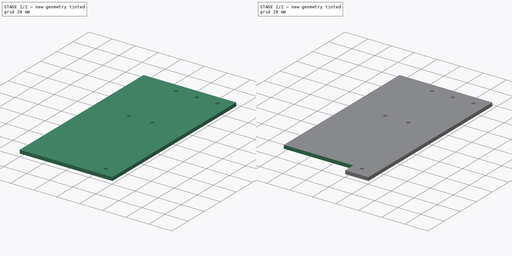
[diagram: build sequence overview — one tinted view per stage of 2, left to right]
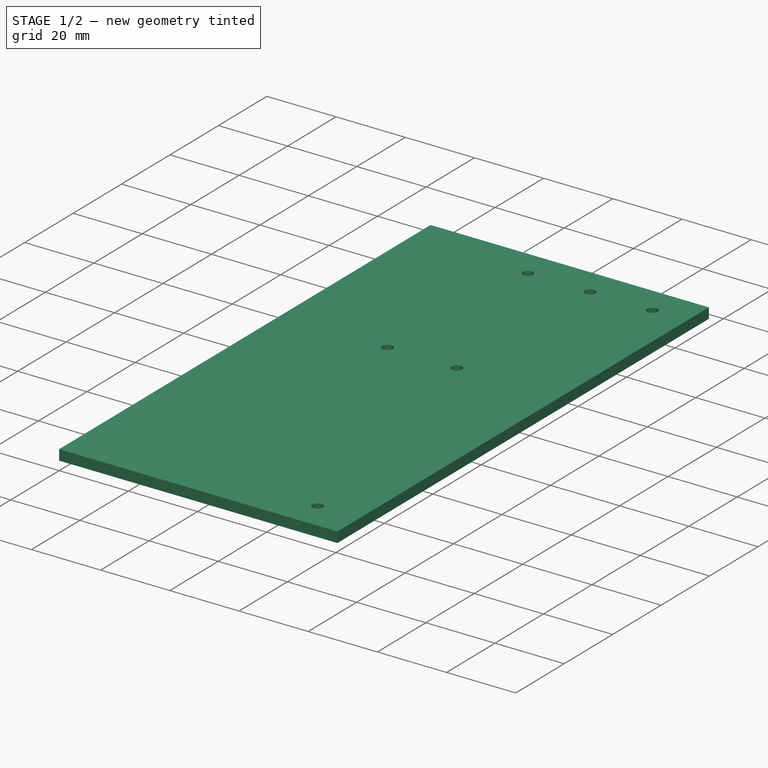
[diagram: stage 1 of 2 — iso view after this stage's code; geometry added in this stage tinted green]
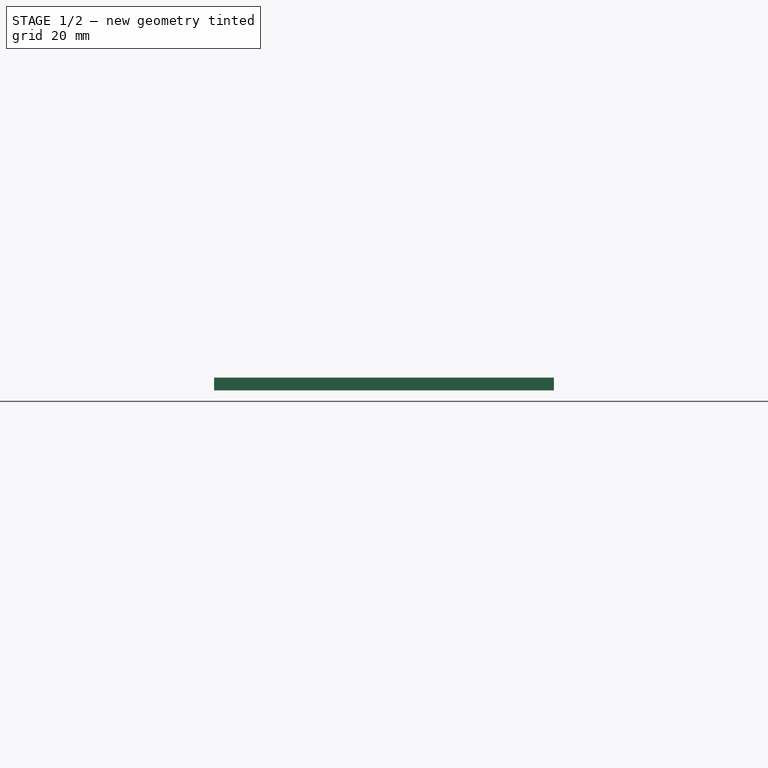
[diagram: stage 1 of 2 — front view after this stage's code; geometry added in this stage tinted green]
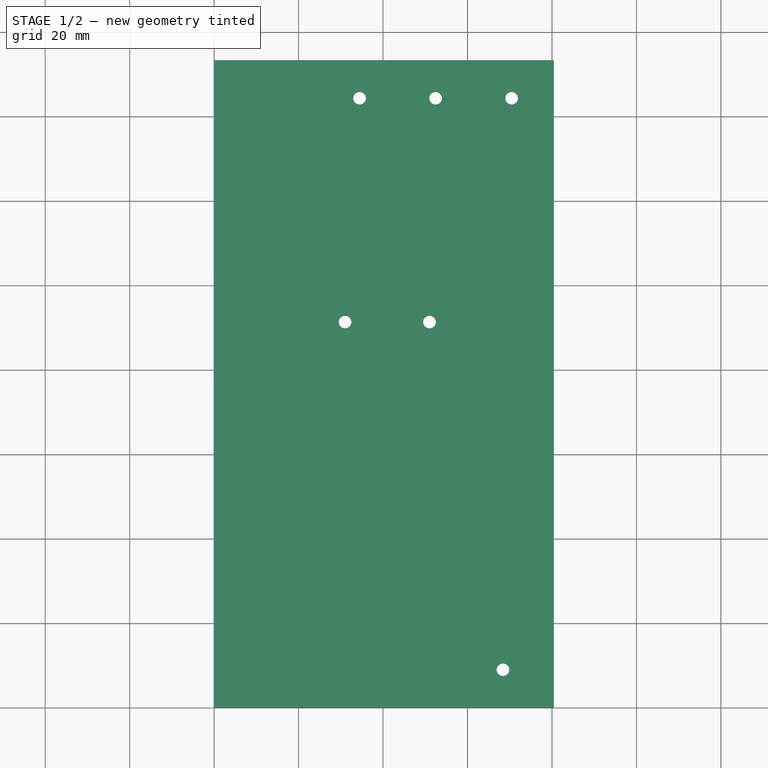
[diagram: stage 1 of 2 — top view after this stage's code; geometry added in this stage tinted green]
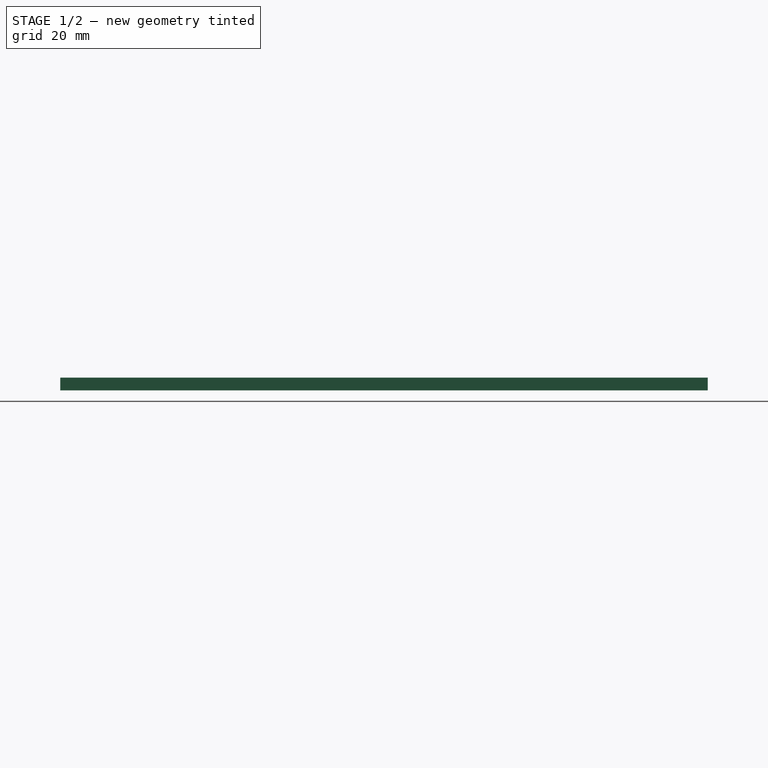
[diagram: stage 1 of 2 — right view after this stage's code; geometry added in this stage tinted green]
FCSTD DOCUMENT  (FreeCAD 0.16R6707 (Git))
Label: cotés
License: All rights reserved
LicenseURL: http://en.wikipedia.org/wiki/All_rights_reserved
objects: Sketcher::SketchObject×2, PartDesign::Pad×1, PartDesign::Pocket×1, Drawing::FeatureViewPart×1, Drawing::FeaturePage×1
note: 6 computed .brp shape members not serialized (recipe doc carries the construction recipe); baked Part::Feature solids carry a one-line shape summary decoded from their .brp

FEATURE [Sketcher::SketchObject] Sketch
  sketch-geometry (10):
    g0: LineSegment StartX=0 StartY=0 StartZ=0 EndX=80.45 EndY=0 EndZ=0
    g1: LineSegment StartX=80.45 StartY=0 StartZ=0 EndX=80.45 EndY=153.35 EndZ=0
    g2: LineSegment StartX=80.45 StartY=153.35 StartZ=0 EndX=0 EndY=153.35 EndZ=0
    g3: LineSegment StartX=0 StartY=153.35 StartZ=0 EndX=0 EndY=0 EndZ=0
    g4: Circle CenterX=68.4 CenterY=9 CenterZ=0 NormalX=0 NormalY=0 NormalZ=1 Radius=1.5
    g5: Circle CenterX=70.45 CenterY=144.35 CenterZ=0 NormalX=0 NormalY=0 NormalZ=1 Radius=1.5
    g6: Circle CenterX=52.45 CenterY=144.35 CenterZ=0 NormalX=0 NormalY=0 NormalZ=1 Radius=1.5
    g7: Circle CenterX=34.45 CenterY=144.35 CenterZ=0 NormalX=0 NormalY=0 NormalZ=1 Radius=1.5
    g8: Circle CenterX=31 CenterY=91.35 CenterZ=0 NormalX=0 NormalY=0 NormalZ=1 Radius=1.5
    g9: Circle CenterX=51 CenterY=91.35 CenterZ=0 NormalX=0 NormalY=0 NormalZ=1 Radius=1.5
  constraints (29):
    c: Coincident(g0,g1)
    c: Coincident(g1,g2)
    c: Coincident(g2,g3)
    c: Coincident(g3,g0)
    c: Horizontal(g0)
    c: Horizontal(g2)
    c: Vertical(g1)
    c: Vertical(g3)
    c: Coincident(g0,g-1)
    c: Distance(g3) = 153.35
    c: Distance(g0) = 80.45
    c: DistanceY(g4) = 9
    c: Radius(g4) = 1.5
    c: DistanceX(g4,g0) = 12.05
    c: DistanceY(g6,g7) = 0
    c: DistanceY(g5,g6) = 0
    c: DistanceX(g7,g6) = 18
    c: DistanceX(g6,g5) = 18
    c: DistanceX(g5,g1) = 10
    c: DistanceY(g5,g1) = 9
    c: Radius(g5) = 1.5
    c: Equal(g5,g6)
    c: Equal(g5,g7)
    c: DistanceY(g8,g9) = 0
    c: DistanceX(g8,g9) = 20
    c: Radius(g8) = 1.5
    c: Equal(g8,g9)
    c: DistanceY(g8) = 91.35
    c: DistanceX(g8) = 31
FEATURE [PartDesign::Pad] Pad
  Length = 3
  Length2 = 100
  Sketch = -> Sketch
  Type = 0
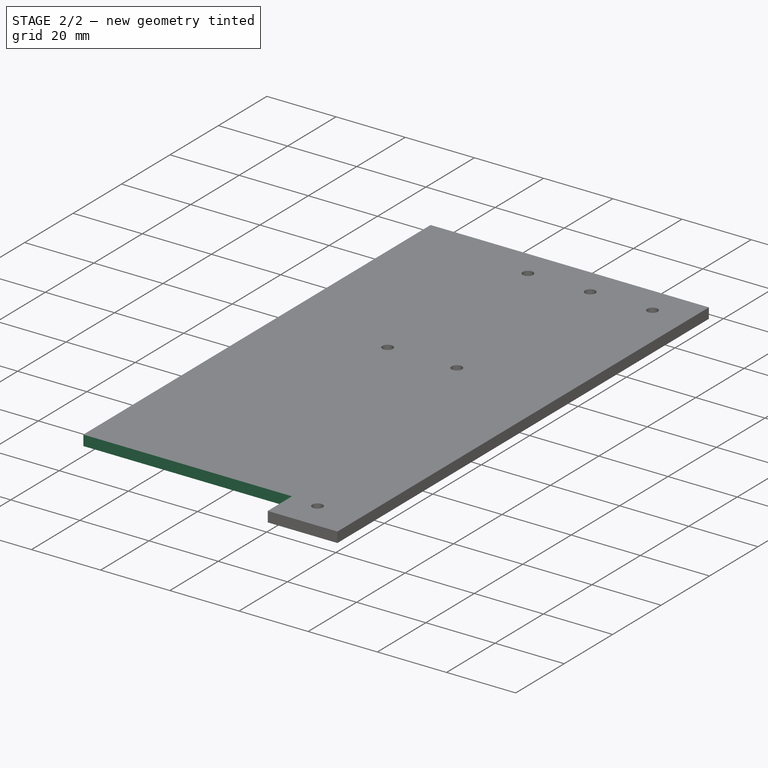
[diagram: stage 2 of 2 — iso view after this stage's code; geometry added in this stage tinted green]
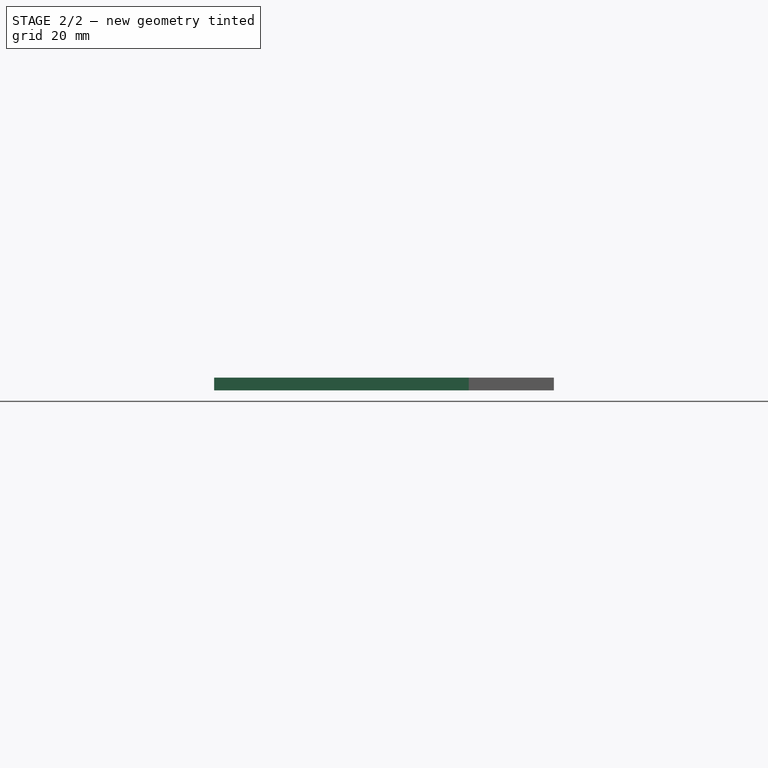
[diagram: stage 2 of 2 — front view after this stage's code; geometry added in this stage tinted green]
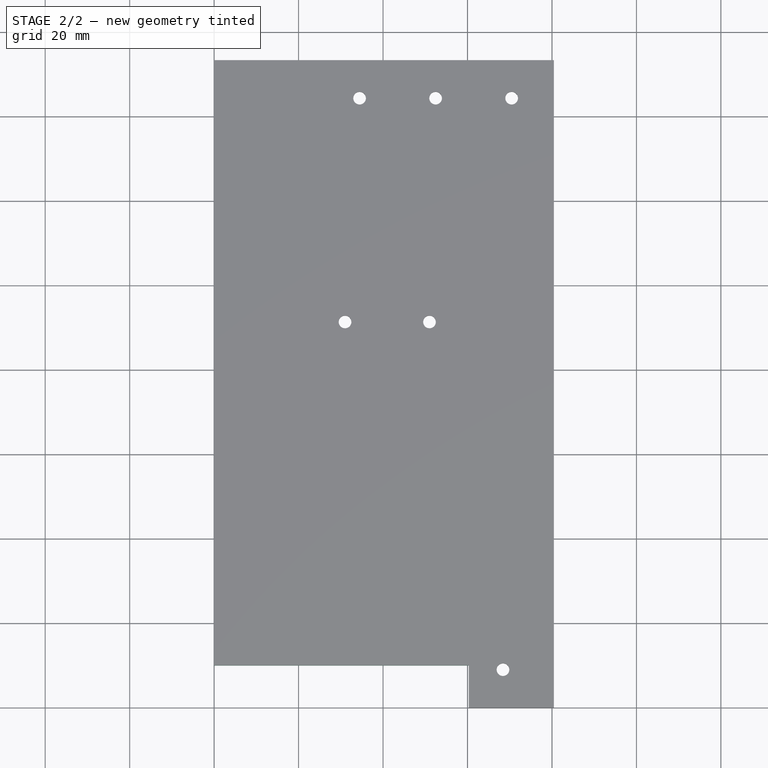
[diagram: stage 2 of 2 — top view after this stage's code; geometry added in this stage tinted green]
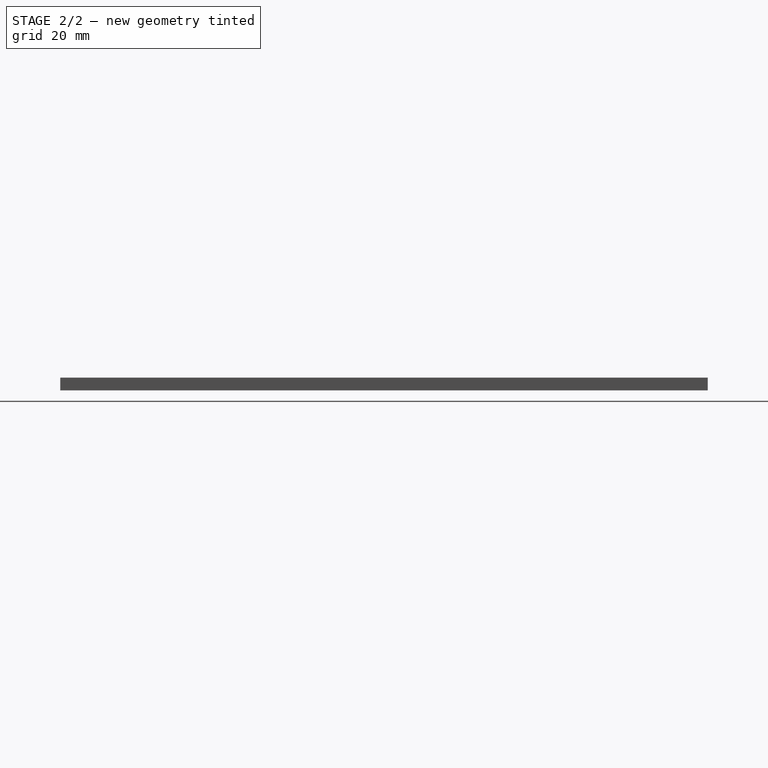
[diagram: stage 2 of 2 — right view after this stage's code; geometry added in this stage tinted green]
FEATURE [Sketcher::SketchObject] Sketch001
  Placement = pos=(0,0,3) rot=(0,0,1;0rad)
  Support = -> Pad [Face12]
  sketch-geometry (4):
    g0: LineSegment StartX=0 StartY=0 StartZ=0 EndX=60.3 EndY=0 EndZ=0
    g1: LineSegment StartX=60.3 StartY=0 StartZ=0 EndX=60.3 EndY=10 EndZ=0
    g2: LineSegment StartX=60.3 StartY=10 StartZ=0 EndX=0 EndY=10 EndZ=0
    g3: LineSegment StartX=0 StartY=10 StartZ=0 EndX=0 EndY=0 EndZ=0
  constraints (11):
    c: Coincident(g0,g1)
    c: Coincident(g1,g2)
    c: Coincident(g2,g3)
    c: Coincident(g3,g0)
    c: Horizontal(g0)
    c: Horizontal(g2)
    c: Vertical(g1)
    c: Vertical(g3)
    c: Coincident(g0,g-1)
    c: Distance(g2) = 60.3
    c: Distance(g1) = 10
FEATURE [PartDesign::Pocket] Pocket
  Length = 5
  Sketch = -> Sketch001
  Type = 1
FEATURE [Drawing::FeatureViewPart] Ortho  label="Ortho_0_0"
  Direction = (0,0,1)
  HiddenWidth = 0.15
  LineWidth = 0.35
  Rotation = 0
  ShowHiddenLines = false
  ShowSmoothLines = false
  Source = -> Pocket
  Tolerance = 0.05
  ViewResult = <g id="Ortho_0_0"\n   transform="rotate(0,74.775,225.175) translate(74.775,225.175) scale(1,1)"\n  >\n<g   stroke="rgb(0, 0, 0)"\n   stroke-width="0.35"\n   stroke-linecap="butt"\n   stroke-linejoin="miter"\n   fill="none"\n   transform="scale(1,-1)"\n  >\n<path id= "1" d=" M 60.3 0 L 80.45 0 " />\n<path id= "2" d=" M 60.3 0 L 60.3 10 " />\n<path id= "3" d=" M 80.45 0 L 80.45 153.35 " />\n<path id= "4" d=" M 80.45 153.35 L 0 153.35 " />\n<path id= "5" d=" M 0 153.35 L 0 10 " />\n<path id= "6" d=" M 60.3 10 L 0 10 " />\n<circle cx ="52.45" cy ="144.35" r ="1.5" /><circle cx ="51" cy ="91.35" r ="1.5" /><circle cx ="70.45" cy ="144.35" r ="1.5" /><circle cx ="68.4" cy ="9" r ="1.5" /><circle cx ="31" cy ="91.35" r ="1.5" /><circle cx ="34.45" cy ="144.35" r ="1.5" /></g>\n</g>
  Visible = true
  X = 74.775
  Y = 225.175
FEATURE [Drawing::FeaturePage] Page
  EditableTexts = AUTHOR NAME | CREATION DATE | SUPERVISOR NAME | CHECK DATE | SCALE | WEIGHT | NUMBER | SHEET | TITLE | SUBTITLE
  Group = -> [Ortho]
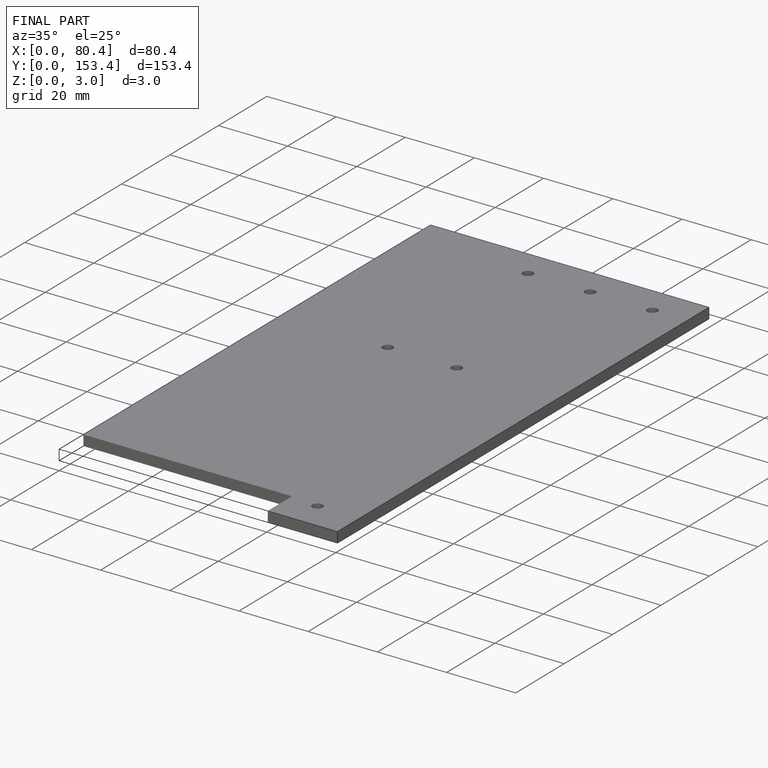
[diagram: finished part — iso view with bounding-box wireframe]
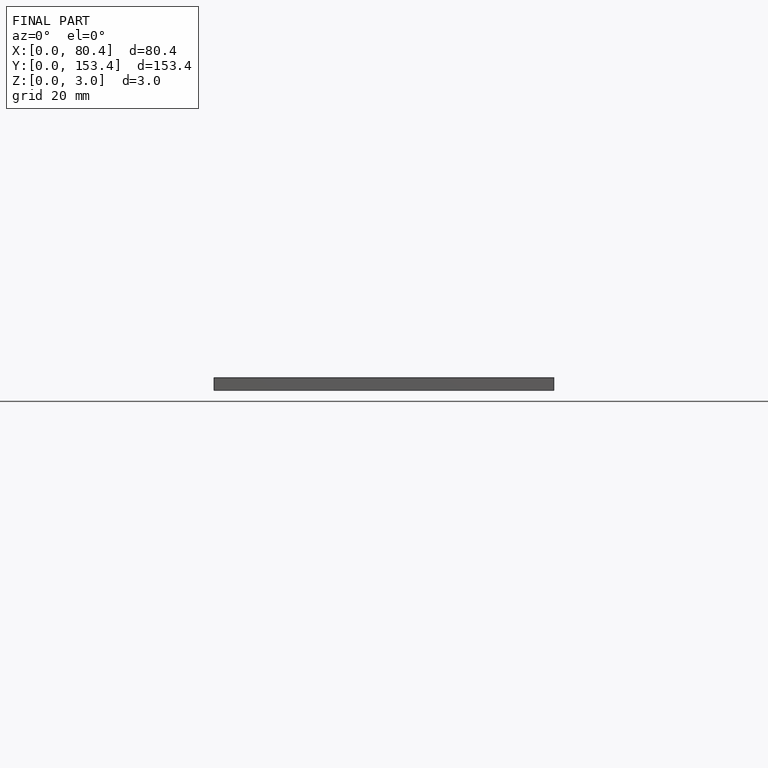
[diagram: finished part — front view with bounding-box wireframe]
